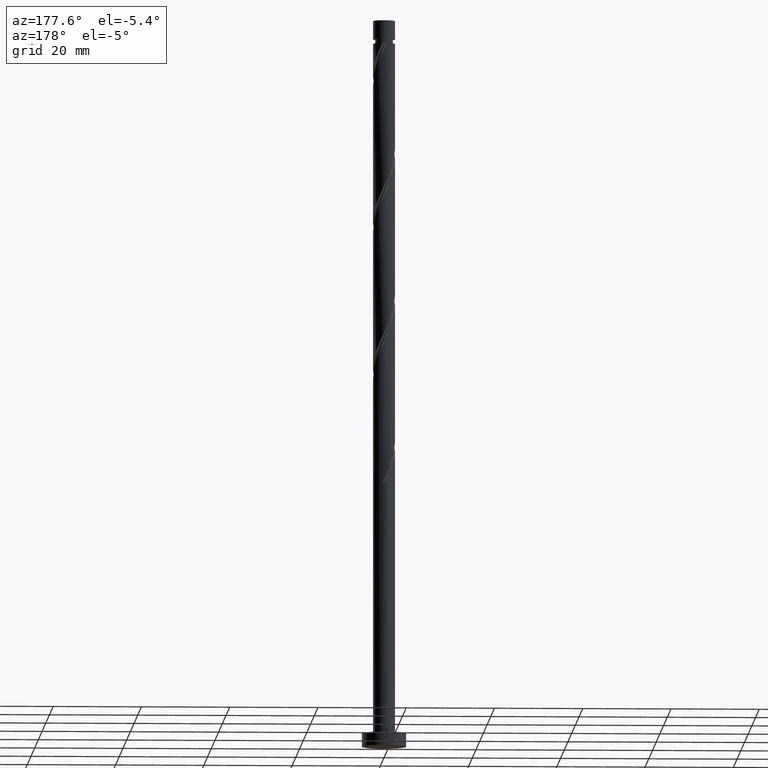
[diagram: clean part render]
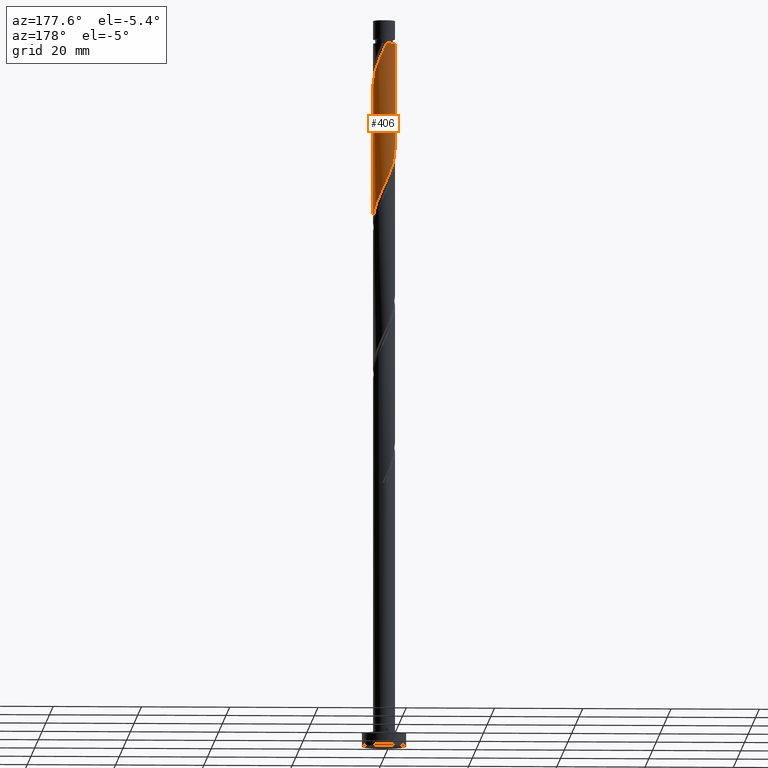
[diagram: same view with one face highlighted and labeled with its STEP entity id]
A machine part, auxiliary view. The second image highlights one B-rep face of the part: STEP entity #406.
In plain terms, the highlighted cylindrical surface (edge-blend (fillet) strip) has radius 2.5 mm, axis along (-0, -0, -1).
Its self-contained STEP definition (entity closure, byte-faithful):
#4 = ORIENTED_EDGE ( 'NONE', *, *, #294, .T. ) ;
#40 =( BOUNDED_CURVE ( )  B_SPLINE_CURVE ( 2, ( #504, #613, #1416, #1160, #1688, #756, #1000, #864, #1298, #495, #1277, #364, #1039, #1572, #1532 ),
 .UNSPECIFIED., .F., .T. ) 
 B_SPLINE_CURVE_WITH_KNOTS ( ( 3, 2, 2, 2, 2, 2, 2, 3 ),
 ( 0.6795317669814463502, 0.6875000000000000000, 0.6979166666666667407, 0.7083333333333332593, 0.7187500000000001110, 0.7291666666666668517, 0.7395833333333333703, 0.7500000000000001110 ),
 .UNSPECIFIED. ) 
 CURVE ( )  GEOMETRIC_REPRESENTATION_ITEM ( )  RATIONAL_B_SPLINE_CURVE ( ( 0.9062941362546477198, 0.9031415850403522461, 0.9090909090909276014, 0.9013135103398458581, 0.9090909090909276014, 0.9013135103398458581, 0.9090909090909276014, 0.9013135103398458581, 0.9090909090909276014, 0.9013135103398458581, 0.9090909090909276014, 0.9013135103398458581, 0.9090909090909276014, 0.9013135103398458581, 0.9090909090909276014 ) ) 
 REPRESENTATION_ITEM ( '' )  );
#63 = CARTESIAN_POINT ( 'NONE',  ( -2.499999999999999556, 0.2512594538148051893, 135.3665661612582198 ) ) ;
#73 = CARTESIAN_POINT ( 'NONE',  ( 0.1749450994641913726, 2.515496290581584748, 127.1975369863485241 ) ) ;
#175 = DIRECTION ( 'NONE',  ( -0.000000000000000000, -0.000000000000000000, -1.000000000000000000 ) ) ;
#211 = CARTESIAN_POINT ( 'NONE',  ( -2.500000000000000000, 6.056282699666153453E-15, 135.8999925304474914 ) ) ;
#224 = CARTESIAN_POINT ( 'NONE',  ( 2.475061956595791646, 0.4820743581320849902, 120.2530925419040955 ) ) ;
#237 = CARTESIAN_POINT ( 'NONE',  ( -0.4820743581320864890, 2.475061956595791646, 128.5864258752374383 ) ) ;
#294 = EDGE_CURVE ( 'NONE', #1215, #480, #1080, .T. ) ;
#312 = CARTESIAN_POINT ( 'NONE',  ( -2.499999999999992895, 0.000000000000000000, 159.8364258752374099 ) ) ;
#345 = FACE_OUTER_BOUND ( 'NONE', #675, .T. ) ;
#358 = CARTESIAN_POINT ( 'NONE',  ( 1.655842198490353745, 1.873015379995218277, 123.7253147641262956 ) ) ;
#364 = CARTESIAN_POINT ( 'NONE',  ( 0.4820743581320892646, 2.475061956595793866, 157.7530925419040955 ) ) ;
#366 = CARTESIAN_POINT ( 'NONE',  ( -2.091011141037078858, 1.409255045694377539, 132.7530925419040670 ) ) ;
#369 = CARTESIAN_POINT ( 'NONE',  ( 2.500000000000000000, 2.945895535393165928E-15, 119.2333258637807916 ) ) ;
#376 = CARTESIAN_POINT ( 'NONE',  ( -1.380630431920283563, 2.084192795893799577, 130.6697592085707527 ) ) ;
#406 = ADVANCED_FACE ( 'NONE', ( #345 ), #874, .T. ) ;
#441 = DIRECTION ( 'NONE',  ( -0.000000000000000000, -0.000000000000000000, -1.000000000000000000 ) ) ;
#475 = DIRECTION ( 'NONE',  ( -0.000000000000000000, -0.000000000000000000, -1.000000000000000000 ) ) ;
#480 = VERTEX_POINT ( 'NONE', #1185 ) ;
#485 = CARTESIAN_POINT ( 'NONE',  ( 0.000000000000000000, 0.000000000000000000, 165.0000000000000000 ) ) ;
#487 = VERTEX_POINT ( 'NONE', #1153 ) ;
#489 = VECTOR ( 'NONE', #441, 1000.000000000000000 ) ;
#495 = CARTESIAN_POINT ( 'NONE',  ( 1.106241244887210096, 2.265956240501273200, 156.3642036530151813 ) ) ;
#504 = CARTESIAN_POINT ( 'NONE',  ( 2.500000000000003997, -2.018760899888703832E-16, 150.4395258866940424 ) ) ;
#505 = CARTESIAN_POINT ( 'NONE',  ( -2.384503709418416051, 0.8200423376424313959, 134.1419814307930096 ) ) ;
#506 = EDGE_CURVE ( 'NONE', #1215, #1073, #1430, .T. ) ;
#531 = EDGE_CURVE ( 'NONE', #1073, #1413, #1193, .T. ) ;
#564 = ORIENTED_EDGE ( 'NONE', *, *, #506, .F. ) ;
#573 = DIRECTION ( 'NONE',  ( -1.000000000000000000, 0.000000000000000000, 0.000000000000000000 ) ) ;
#581 = CARTESIAN_POINT ( 'NONE',  ( 2.500000000000000000, 3.061616997868383141E-16, 165.0000000000000000 ) ) ;
#607 = CARTESIAN_POINT ( 'NONE',  ( -2.450000000000000178, 0.4974937185533112594, 134.8364258752373814 ) ) ;
#613 = CARTESIAN_POINT ( 'NONE',  ( 2.500000000000003109, 0.2512594538148059109, 150.9729522558833139 ) ) ;
#615 = CARTESIAN_POINT ( 'NONE',  ( -1.873015379995218499, 1.655842198490353079, 132.0586480974596384 ) ) ;
#633 = CARTESIAN_POINT ( 'NONE',  ( 2.084192795893799577, 1.380630431920283341, 122.3364258752373956 ) ) ;
#675 = EDGE_LOOP ( 'NONE', ( #996, #1268, #794, #564, #4 ) ) ;
#685 = AXIS2_PLACEMENT_3D ( 'NONE', #485, #475, #1399 ) ;
#749 = CARTESIAN_POINT ( 'NONE',  ( -2.237757425227747010, 1.114648691668404634, 133.4475369863485525 ) ) ;
#756 = CARTESIAN_POINT ( 'NONE',  ( 2.091011141037082854, 1.409255045694377761, 153.5864258752374099 ) ) ;
#759 = CARTESIAN_POINT ( 'NONE',  ( 2.500000000000000000, 2.945895535393165928E-15, 119.2333258637807916 ) ) ;
#794 = ORIENTED_EDGE ( 'NONE', *, *, #531, .F. ) ;
#864 = CARTESIAN_POINT ( 'NONE',  ( 1.655019618953364802, 1.902429351286330395, 154.9753147641262103 ) ) ;
#874 = CYLINDRICAL_SURFACE ( 'NONE', #685, 2.500000000000000000 ) ;
#897 = CARTESIAN_POINT ( 'NONE',  ( 0.4974937185533117034, 2.450000000000000178, 126.5030925419040670 ) ) ;
#916 = AXIS2_PLACEMENT_3D ( 'NONE', #1123, #175, #573 ) ;
#917 = CARTESIAN_POINT ( 'NONE',  ( 2.500000000000000000, 0.07685487914418036304, 119.3964895518089406 ) ) ;
#996 = ORIENTED_EDGE ( 'NONE', *, *, #1032, .F. ) ;
#1000 = CARTESIAN_POINT ( 'NONE',  ( 1.873015379995223606, 1.655842198490353745, 154.2808703196818385 ) ) ;
#1019 = CARTESIAN_POINT ( 'NONE',  ( -1.655019618953360139, 1.902429351286329506, 131.3642036530152097 ) ) ;
#1032 = EDGE_CURVE ( 'NONE', #487, #480, #40, .T. ) ;
#1039 = CARTESIAN_POINT ( 'NONE',  ( 0.1535646293339503476, 2.495279123588691306, 158.4475369863484957 ) ) ;
#1059 = CARTESIAN_POINT ( 'NONE',  ( -2.500000000000000000, 6.056282699666153453E-15, 135.8999925304474914 ) ) ;
#1073 = VERTEX_POINT ( 'NONE', #1059 ) ;
#1080 = CIRCLE ( 'NONE', #916, 2.499999999999992895 ) ;
#1123 = CARTESIAN_POINT ( 'NONE',  ( 0.000000000000000000, 0.000000000000000000, 159.8364258752374099 ) ) ;
#1144 = CARTESIAN_POINT ( 'NONE',  ( 2.495279123588687309, 0.1535646293339463508, 119.5586480974596384 ) ) ;
#1153 = CARTESIAN_POINT ( 'NONE',  ( 2.500000000000003997, -2.018760899888703832E-16, 150.4395258866940424 ) ) ;
#1160 = CARTESIAN_POINT ( 'NONE',  ( 2.384503709418420492, 0.8200423376424312849, 152.1975369863485241 ) ) ;
#1162 = CARTESIAN_POINT ( 'NONE',  ( 0.8200423376424335054, 2.384503709418415607, 125.8086480974596242 ) ) ;
#1169 = VECTOR ( 'NONE', #1408, 1000.000000000000000 ) ;
#1174 = CARTESIAN_POINT ( 'NONE',  ( 2.265956240501271868, 1.106241244887204989, 121.6419814307929812 ) ) ;
#1184 = EDGE_CURVE ( 'NONE', #487, #1413, #1376, .T. ) ;
#1185 = CARTESIAN_POINT ( 'NONE',  ( -0.4974937185533107042, 2.450000000000001954, 159.8364258752374099 ) ) ;
#1193 =( BOUNDED_CURVE ( )  B_SPLINE_CURVE ( 2, ( #211, #63, #607, #505, #749, #366, #615, #1019, #376, #1291, #1318, #237, #1673, #73, #897, #1162, #1690, #1551, #358, #1573, #633, #1174, #1418, #224, #1144, #917, #759 ),
 .UNSPECIFIED., .F., .T. ) 
 B_SPLINE_CURVE_WITH_KNOTS ( ( 3, 2, 2, 2, 2, 2, 2, 2, 2, 2, 2, 2, 2, 3 ),
 ( 0.4295317669814462946, 0.4375000000000000000, 0.4479166666666666852, 0.4583333333333333148, 0.4687500000000000000, 0.4791666666666666852, 0.4895833333333333148, 0.5000000000000000000, 0.5104166666666666297, 0.5208333333333333703, 0.5312500000000000000, 0.5416666666666666297, 0.5520833333333333703, 0.5545317669814463502 ),
 .UNSPECIFIED. ) 
 CURVE ( )  GEOMETRIC_REPRESENTATION_ITEM ( )  RATIONAL_B_SPLINE_CURVE ( ( 0.9062941362546418356, 0.9031415850403460288, 0.9090909090909213841, 0.9013135103398396408, 0.9090909090909213841, 0.9013135103398396408, 0.9090909090909213841, 0.9013135103398396408, 0.9090909090909213841, 0.9013135103398396408, 0.9090909090909213841, 0.9013135103398396408, 0.9090909090909213841, 0.9013135103398396408, 0.9090909090909213841, 0.9013135103398396408, 0.9090909090909213841, 0.9013135103398396408, 0.9090909090909213841, 0.9013135103398396408, 0.9090909090909213841, 0.9013135103398396408, 0.9090909090909213841, 0.9013135103398396408, 0.9090909090909213841, 0.9072628343904151071, 0.9062941362546416135 ) ) 
 REPRESENTATION_ITEM ( '' )  );
#1215 = VERTEX_POINT ( 'NONE', #312 ) ;
#1268 = ORIENTED_EDGE ( 'NONE', *, *, #1184, .T. ) ;
#1277 = CARTESIAN_POINT ( 'NONE',  ( 0.7941578015096494303, 2.370509098548533089, 157.0586480974596384 ) ) ;
#1291 = CARTESIAN_POINT ( 'NONE',  ( -1.106241244887206765, 2.265956240501270536, 129.9753147641262956 ) ) ;
#1298 = CARTESIAN_POINT ( 'NONE',  ( 1.380630431920286449, 2.084192795893802241, 155.6697592085707811 ) ) ;
#1318 = CARTESIAN_POINT ( 'NONE',  ( -0.7941578015096466547, 2.370509098548529536, 129.2808703196818954 ) ) ;
#1376 = LINE ( 'NONE', #581, #489 ) ;
#1399 = DIRECTION ( 'NONE',  ( -1.000000000000000000, 0.000000000000000000, 0.000000000000000000 ) ) ;
#1408 = DIRECTION ( 'NONE',  ( -0.000000000000000000, -0.000000000000000000, -1.000000000000000000 ) ) ;
#1413 = VERTEX_POINT ( 'NONE', #369 ) ;
#1416 = CARTESIAN_POINT ( 'NONE',  ( 2.450000000000003286, 0.4974937185533111483, 151.5030925419040670 ) ) ;
#1418 = CARTESIAN_POINT ( 'NONE',  ( 2.370509098548530869, 0.7941578015096448784, 120.9475369863485099 ) ) ;
#1430 = LINE ( 'NONE', #1535, #1169 ) ;
#1532 = CARTESIAN_POINT ( 'NONE',  ( -0.4974937185533107042, 2.450000000000001510, 159.8364258752374099 ) ) ;
#1535 = CARTESIAN_POINT ( 'NONE',  ( -2.500000000000000000, 0.000000000000000000, 165.0000000000000000 ) ) ;
#1551 = CARTESIAN_POINT ( 'NONE',  ( 1.409255045694378428, 2.091011141037078414, 124.4197592085707811 ) ) ;
#1572 = CARTESIAN_POINT ( 'NONE',  ( -0.1749450994641922053, 2.515496290581588301, 159.1419814307929528 ) ) ;
#1573 = CARTESIAN_POINT ( 'NONE',  ( 1.902429351286330395, 1.655019618953359251, 123.0308703196818527 ) ) ;
#1673 = CARTESIAN_POINT ( 'NONE',  ( -0.1535646293339475998, 2.495279123588687309, 127.8919814307929670 ) ) ;
#1688 = CARTESIAN_POINT ( 'NONE',  ( 2.237757425227751451, 1.114648691668404190, 152.8919814307929812 ) ) ;
#1690 = CARTESIAN_POINT ( 'NONE',  ( 1.114648691668406411, 2.237757425227745678, 125.1142036530151529 ) ) ;